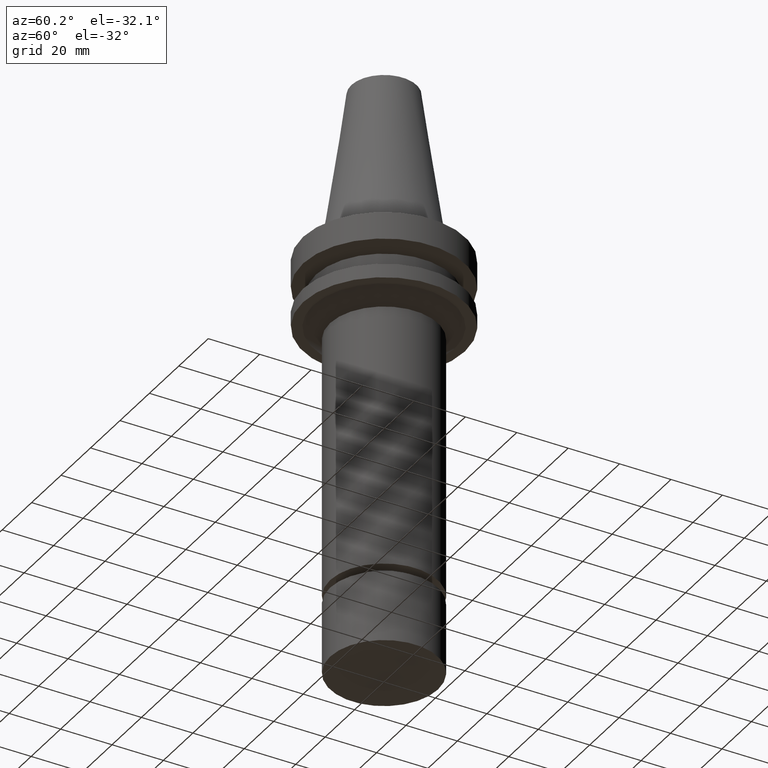
[diagram: clean part render]
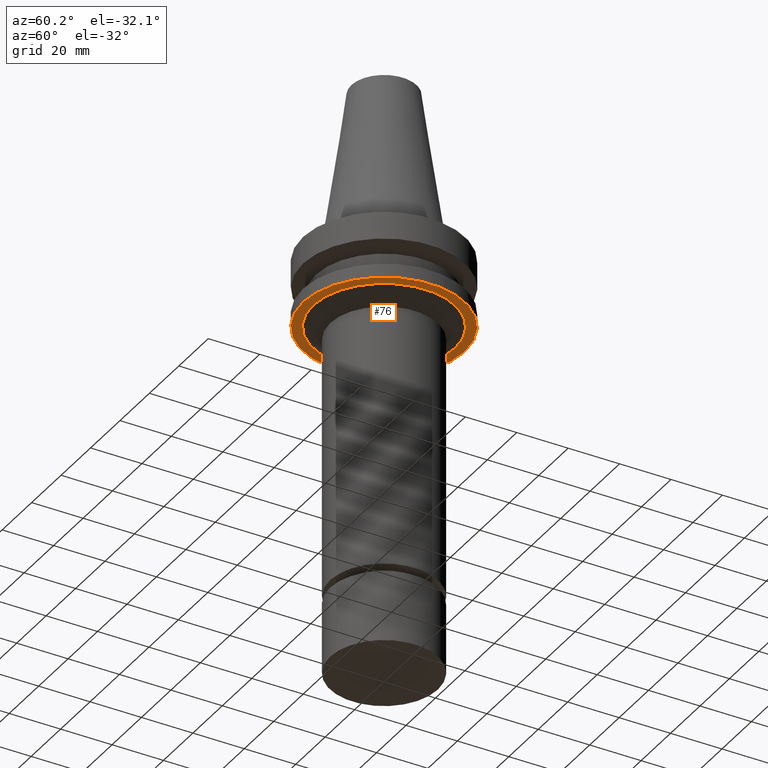
[diagram: same view with one face highlighted and labeled with its STEP entity id]
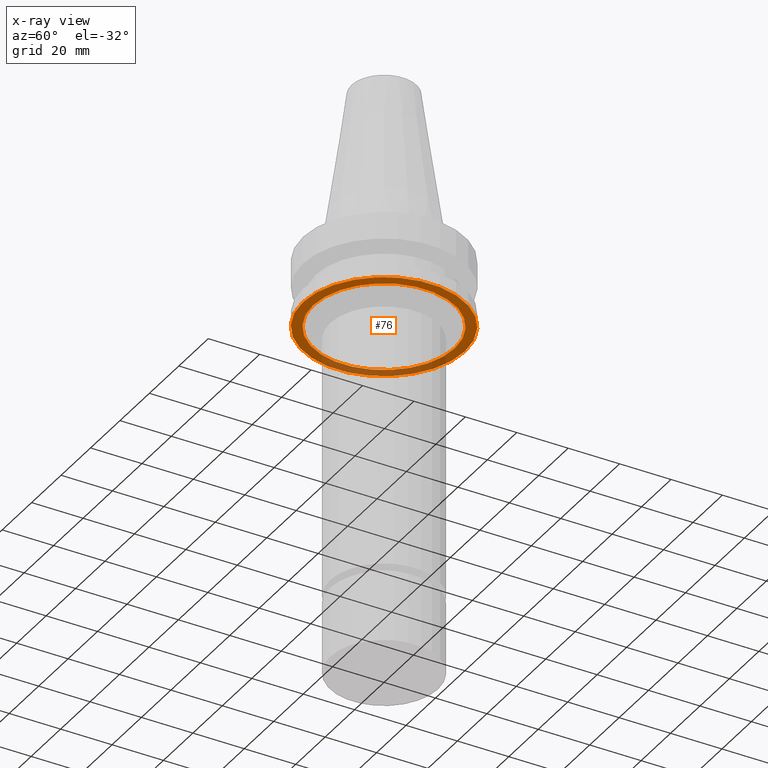
[diagram: x-ray of the same camera — body ghosted, the highlighted face saturated]
A machine part, auxiliary view. The second image highlights one B-rep face of the part: STEP entity #76.
The next image is the same camera in x-ray: the body ghosted, the highlighted face saturated — about 25% of this face is hidden behind the body in this view.
In plain terms, the highlighted planar face has unit normal (0, 0, -1).
Its self-contained STEP definition (entity closure, byte-faithful):
#76=ADVANCED_FACE('Unnamed[1]',(#202,#203),#204,.T.);
#100=EDGE_CURVE('Unnamed[1]',#239,#239,#240,.T.);
#134=EDGE_CURVE('Unnamed[1]',#291,#291,#292,.T.);
#202=FACE_BOUND('',#378,.T.);
#203=FACE_OUTER_BOUND('',#379,.T.);
#204=PLANE('',#380);
#239=VERTEX_POINT('',#424);
#240=CIRCLE('',#425,31.5000000000003);
#291=VERTEX_POINT('',#490);
#292=CIRCLE('',#491,27.5718520261655);
#378=EDGE_LOOP('',(#581));
#379=EDGE_LOOP('',(#582));
#380=AXIS2_PLACEMENT_3D('',#583,#584,#585);
#424=CARTESIAN_POINT('',(1.65327317884891E-015,31.5000000000004,-26.9999999999998));
#425=AXIS2_PLACEMENT_3D('',#620,#621,#622);
#490=CARTESIAN_POINT('',(1.65327317884891E-015,27.5718520261656,-26.9999999999998));
#491=AXIS2_PLACEMENT_3D('',#678,#679,#680);
#581=ORIENTED_EDGE('',*,*,#134,.F.);
#582=ORIENTED_EDGE('',*,*,#100,.T.);
#583=CARTESIAN_POINT('',(1.65327317884891E-015,29.535926013083,-26.9999999999998));
#584=DIRECTION('',(6.12323399573677E-017,2.83573849429108E-015,-1.0));
#585=DIRECTION('',(-1.78466056243394E-031,1.0,2.83573849429108E-015));
#620=CARTESIAN_POINT('',(1.65327317884891E-015,7.78946933018243E-014,-26.9999999999998));
#621=DIRECTION('',(6.12323399573677E-017,7.7767456976107E-018,-1.0));
#622=DIRECTION('',(-5.30334106708505E-033,1.0,7.7767456976107E-018));
#678=CARTESIAN_POINT('',(1.65327317884891E-015,7.78946933018243E-014,-26.9999999999998));
#679=DIRECTION('',(6.12323399573676E-017,7.77674569761768E-018,-1.0));
#680=DIRECTION('',(-5.3033410670733E-033,1.0,7.77674569761768E-018));